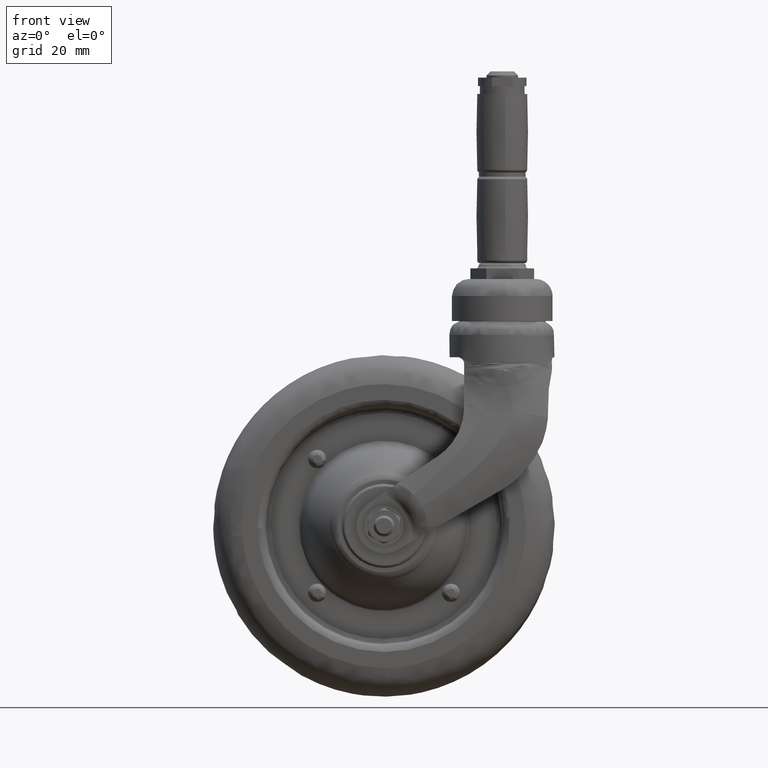
[diagram: clean part render]
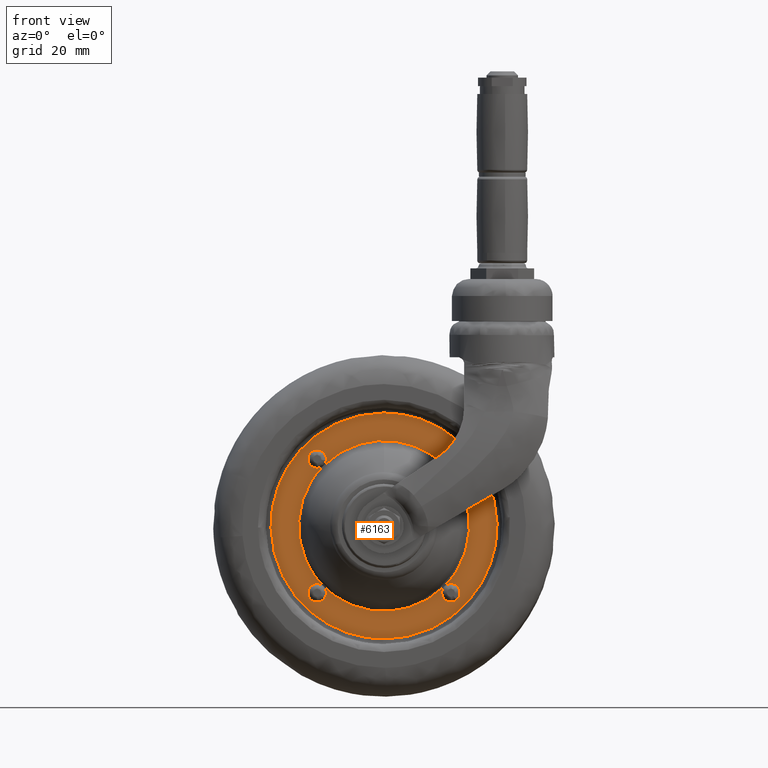
[diagram: same view with one face highlighted and labeled with its STEP entity id]
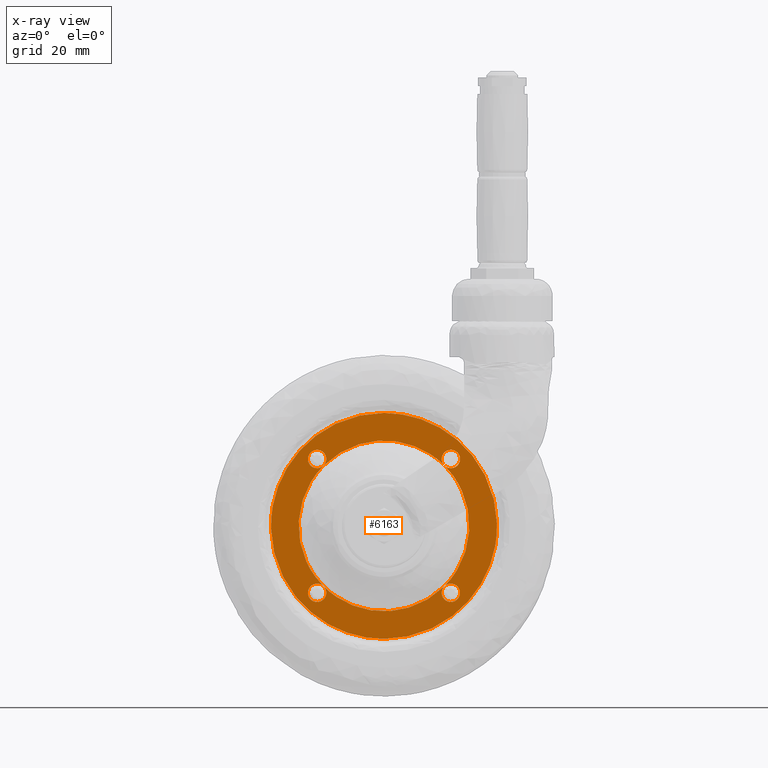
[diagram: x-ray of the same camera — body ghosted, the highlighted face saturated]
A machine part, front view. The second image highlights one B-rep face of the part: STEP entity #6163.
The next image is the same camera in x-ray: the body ghosted, the highlighted face saturated — about 0% of this face is hidden behind the body in this view.
In plain terms, the highlighted face is a freeform B-spline surface patch.
Its self-contained STEP definition (entity closure, byte-faithful):
#2455=CARTESIAN_POINT('',(42.986420140294030,-1.500000000000000,1.080594104099054));
#2456=VERTEX_POINT('',#2455);
#2470=CARTESIAN_POINT('',(0.0,-1.500000000000000,-43.0));
#2471=VERTEX_POINT('',#2470);
#2472=CARTESIAN_POINT('',(0.0,-1.500000000000000,-43.0));
#2473=CARTESIAN_POINT('',(42.999999999999993,-1.500000000000000,-42.999999999999993));
#2474=CARTESIAN_POINT('',(43.0,-1.500000000000000,0.0));
#2475=CARTESIAN_POINT('',(42.999999999999993,-1.500000000000000,0.540382381312797));
#2476=CARTESIAN_POINT('',(42.986420140294030,-1.500000000000000,1.080594104099055));
#2484=(BOUNDED_CURVE()B_SPLINE_CURVE(2,(#2472,#2473,#2474,#2475,#2476),.UNSPECIFIED.,.F.,.U.)B_SPLINE_CURVE_WITH_KNOTS((3,2,3),(0.500000000000000,0.750000000000000,0.754420108230253),.UNSPECIFIED.)CURVE()GEOMETRIC_REPRESENTATION_ITEM()RATIONAL_B_SPLINE_CURVE((1.0,0.707106781186548,1.0,0.994821521091749,0.989826157681439))REPRESENTATION_ITEM(''));
#2485=EDGE_CURVE('',#2471,#2456,#2484,.T.);
#2487=CARTESIAN_POINT('',(-42.986420140294022,-1.500000000000000,-1.080594104099051));
#2488=VERTEX_POINT('',#2487);
#2489=CARTESIAN_POINT('',(-42.986420140294022,-1.500000000000000,-1.080594104099051));
#2490=CARTESIAN_POINT('',(-41.932648675753114,-1.500000000000000,-42.999999999999986));
#2491=CARTESIAN_POINT('',(0.0,-1.500000000000000,-43.0));
#2499=(BOUNDED_CURVE()B_SPLINE_CURVE(2,(#2489,#2490,#2491),.UNSPECIFIED.,.F.,.U.)B_SPLINE_CURVE_WITH_KNOTS((3,3),(0.254420108230254,0.500000000000000),.UNSPECIFIED.)CURVE()GEOMETRIC_REPRESENTATION_ITEM()RATIONAL_B_SPLINE_CURVE((0.989826157681437,0.712285260094800,1.0))REPRESENTATION_ITEM(''));
#2500=EDGE_CURVE('',#2488,#2471,#2499,.T.);
#2547=CARTESIAN_POINT('',(0.0,-1.500000000000000,43.0));
#2548=VERTEX_POINT('',#2547);
#2549=CARTESIAN_POINT('',(0.0,-1.500000000000000,43.0));
#2550=CARTESIAN_POINT('',(-42.999999999999993,-1.500000000000000,42.999999999999993));
#2551=CARTESIAN_POINT('',(-43.0,-1.500000000000000,0.0));
#2552=CARTESIAN_POINT('',(-43.0,-1.500000000000000,-0.540382381312920));
#2553=CARTESIAN_POINT('',(-42.986420140294030,-1.500000000000000,-1.080594104099051));
#2561=(BOUNDED_CURVE()B_SPLINE_CURVE(2,(#2549,#2550,#2551,#2552,#2553),.UNSPECIFIED.,.F.,.U.)B_SPLINE_CURVE_WITH_KNOTS((3,2,3),(0.0,0.250000000000000,0.254420108230254),.UNSPECIFIED.)CURVE()GEOMETRIC_REPRESENTATION_ITEM()RATIONAL_B_SPLINE_CURVE((1.0,0.707106781186548,1.0,0.994821521091748,0.989826157681436))REPRESENTATION_ITEM(''));
#2562=EDGE_CURVE('',#2548,#2488,#2561,.T.);
#2564=CARTESIAN_POINT('',(42.986420140294037,-1.500000000000000,1.080594104099054));
#2565=CARTESIAN_POINT('',(41.932648675753114,-1.500000000000000,42.999999999999986));
#2566=CARTESIAN_POINT('',(0.0,-1.500000000000000,43.0));
#2574=(BOUNDED_CURVE()B_SPLINE_CURVE(2,(#2564,#2565,#2566),.UNSPECIFIED.,.F.,.U.)B_SPLINE_CURVE_WITH_KNOTS((3,3),(0.754420108230254,1.0),.UNSPECIFIED.)CURVE()GEOMETRIC_REPRESENTATION_ITEM()RATIONAL_B_SPLINE_CURVE((0.989826157681437,0.712285260094800,1.0))REPRESENTATION_ITEM(''));
#2575=EDGE_CURVE('',#2456,#2548,#2574,.T.);
#2758=CARTESIAN_POINT('',(-29.581760013895249,-1.500000000000000,-13.468716157134571));
#2759=VERTEX_POINT('',#2758);
#2760=CARTESIAN_POINT('',(-23.090573033363999,-1.500000000000000,22.876019731878401));
#2761=VERTEX_POINT('',#2760);
#2762=CARTESIAN_POINT('',(-29.581760013895245,-1.500000000000000,-13.468716157134565));
#2763=CARTESIAN_POINT('',(-38.875385422188778,-1.499999999999999,6.943162200102726));
#2764=CARTESIAN_POINT('',(-23.090573033363992,-1.500000000000000,22.876019731878390));
#2772=(BOUNDED_CURVE()B_SPLINE_CURVE(2,(#2762,#2763,#2764),.UNSPECIFIED.,.F.,.U.)B_SPLINE_CURVE_WITH_KNOTS((3,3),(0.236393661516890,1.0),.UNSPECIFIED.)CURVE()GEOMETRIC_REPRESENTATION_ITEM()RATIONAL_B_SPLINE_CURVE((0.895447454175677,0.778859244462329,1.0))REPRESENTATION_ITEM(''));
#2773=EDGE_CURVE('',#2759,#2761,#2772,.T.);
#2822=CARTESIAN_POINT('',(29.581760014636380,-1.500000000000000,13.468716157481801));
#2823=VERTEX_POINT('',#2822);
#2837=CARTESIAN_POINT('',(23.090573033364102,-1.500000000000000,22.876019731878301));
#2838=VERTEX_POINT('',#2837);
#2839=CARTESIAN_POINT('',(23.090573033364091,-1.500000000000000,22.876019731878291));
#2840=CARTESIAN_POINT('',(27.176240963495321,-1.499999999999999,18.752032480752465));
#2841=CARTESIAN_POINT('',(29.581760014636373,-1.500000000000001,13.468716157481802));
#2849=(BOUNDED_CURVE()B_SPLINE_CURVE(2,(#2839,#2840,#2841),.UNSPECIFIED.,.F.,.U.)B_SPLINE_CURVE_WITH_KNOTS((3,3),(0.0,0.236393661516541),.UNSPECIFIED.)CURVE()GEOMETRIC_REPRESENTATION_ITEM()RATIONAL_B_SPLINE_CURVE((1.0,0.931540284204646,0.895447454175784))REPRESENTATION_ITEM(''));
#2850=EDGE_CURVE('',#2838,#2823,#2849,.T.);
#2852=CARTESIAN_POINT('',(22.876019731878401,-1.500000000000000,23.090573033363999));
#2853=VERTEX_POINT('',#2852);
#2862=CARTESIAN_POINT('',(-22.876019731878301,-1.500000000000000,23.090573033364102));
#2863=VERTEX_POINT('',#2862);
#2864=CARTESIAN_POINT('',(-22.876019731878301,-1.500000000000000,23.090573033364080));
#2865=CARTESIAN_POINT('',(9.367507E-014,-1.500000000000000,45.754033053050122));
#2866=CARTESIAN_POINT('',(22.876019731878390,-1.500000000000000,23.090573033363992));
#2874=(BOUNDED_CURVE()B_SPLINE_CURVE(2,(#2864,#2865,#2866),.UNSPECIFIED.,.F.,.U.)CURVE()GEOMETRIC_REPRESENTATION_ITEM()QUASI_UNIFORM_CURVE()RATIONAL_B_SPLINE_CURVE((1.0,0.710399528666874,1.0))REPRESENTATION_ITEM(''));
#2875=EDGE_CURVE('',#2863,#2853,#2874,.T.);
#2911=CARTESIAN_POINT('',(-23.090573033364102,-1.500000000000000,-22.876019731878301));
#2912=VERTEX_POINT('',#2911);
#2913=CARTESIAN_POINT('',(-23.090573033364080,-1.500000000000000,-22.876019731878301));
#2914=CARTESIAN_POINT('',(-27.176240963501787,-1.500000000000000,-18.752032480745942));
#2915=CARTESIAN_POINT('',(-29.581760013895249,-1.500000000000001,-13.468716157134574));
#2923=(BOUNDED_CURVE()B_SPLINE_CURVE(2,(#2913,#2914,#2915),.UNSPECIFIED.,.F.,.U.)B_SPLINE_CURVE_WITH_KNOTS((3,3),(0.0,0.236393661516890),.UNSPECIFIED.)CURVE()GEOMETRIC_REPRESENTATION_ITEM()RATIONAL_B_SPLINE_CURVE((1.0,0.931540284204545,0.895447454175677))REPRESENTATION_ITEM(''));
#2924=EDGE_CURVE('',#2912,#2759,#2923,.T.);
#2926=CARTESIAN_POINT('',(-22.876019731878401,-1.500000000000000,-23.090573033363999));
#2927=VERTEX_POINT('',#2926);
#2936=CARTESIAN_POINT('',(22.876019731878301,-1.500000000000000,-23.090573033364102));
#2937=VERTEX_POINT('',#2936);
#2938=CARTESIAN_POINT('',(22.876019731878291,-1.500000000000000,-23.090573033364102));
#2939=CARTESIAN_POINT('',(-9.714451E-014,-1.500000000000000,-45.754033053050101));
#2940=CARTESIAN_POINT('',(-22.876019731878390,-1.500000000000000,-23.090573033363999));
#2948=(BOUNDED_CURVE()B_SPLINE_CURVE(2,(#2938,#2939,#2940),.UNSPECIFIED.,.F.,.U.)CURVE()GEOMETRIC_REPRESENTATION_ITEM()QUASI_UNIFORM_CURVE()RATIONAL_B_SPLINE_CURVE((1.0,0.710399528666875,1.0))REPRESENTATION_ITEM(''));
#2949=EDGE_CURVE('',#2937,#2927,#2948,.T.);
#2951=CARTESIAN_POINT('',(23.090573033363999,-1.500000000000000,-22.876019731878401));
#2952=VERTEX_POINT('',#2951);
#2961=CARTESIAN_POINT('',(29.581760014636373,-1.500000000000001,13.468716157481802));
#2962=CARTESIAN_POINT('',(38.875385422198036,-1.500000000000000,-6.943162200093386));
#2963=CARTESIAN_POINT('',(23.090573033363981,-1.500000000000000,-22.876019731878401));
#2971=(BOUNDED_CURVE()B_SPLINE_CURVE(2,(#2961,#2962,#2963),.UNSPECIFIED.,.F.,.U.)B_SPLINE_CURVE_WITH_KNOTS((3,3),(0.236393661516541,1.0),.UNSPECIFIED.)CURVE()GEOMETRIC_REPRESENTATION_ITEM()RATIONAL_B_SPLINE_CURVE((0.895447454175784,0.778859244462228,1.0))REPRESENTATION_ITEM(''));
#2972=EDGE_CURVE('',#2823,#2952,#2971,.T.);
#3789=CARTESIAN_POINT('',(-25.455844000000180,-1.500000000017301,21.955843999999999));
#3790=VERTEX_POINT('',#3789);
#3791=CARTESIAN_POINT('',(-22.009567270336280,-1.500000000016411,24.844962094408551));
#3792=VERTEX_POINT('',#3791);
#3793=CARTESIAN_POINT('',(-25.455844000000184,-1.500000000017301,21.955843999999995));
#3794=CARTESIAN_POINT('',(-26.950243076269714,-1.500000000000055,21.955844000000234));
#3795=CARTESIAN_POINT('',(-27.983787070009861,-1.500000000000055,23.035202796767141));
#3796=CARTESIAN_POINT('',(-30.352509658176039,-1.500000000000056,25.508925810129693));
#3797=CARTESIAN_POINT('',(-27.930717734152822,-1.500000000000055,27.930717734152910));
#3798=CARTESIAN_POINT('',(-25.508925810129600,-1.500000000000056,30.352509658176132));
#3799=CARTESIAN_POINT('',(-23.035202796767049,-1.500000000000055,27.983787070009960));
#3800=CARTESIAN_POINT('',(-21.682742964262140,-1.500000000000055,26.688734173005482));
#3801=CARTESIAN_POINT('',(-22.009567270336287,-1.500000000016411,24.844962094408555));
#3809=(BOUNDED_CURVE()B_SPLINE_CURVE(2,(#3793,#3794,#3795,#3796,#3797,#3798,#3799,#3800,#3801),.UNSPECIFIED.,.F.,.U.)B_SPLINE_CURVE_WITH_KNOTS((3,2,2,2,3),(0.120016462546934,0.250000000000000,0.500000000000000,0.750000000000000,0.906980907594701),.UNSPECIFIED.)CURVE()GEOMETRIC_REPRESENTATION_ITEM()RATIONAL_B_SPLINE_CURVE((0.857591768916011,0.851678440542794,1.0,0.714730106666852,1.0,0.714730106666852,1.0,0.820872292940476,0.866701626117446))REPRESENTATION_ITEM(''));
#3810=EDGE_CURVE('',#3790,#3792,#3809,.T.);
#3910=CARTESIAN_POINT('',(-22.009567270336287,-1.500000000016412,24.844962094408555));
#3911=CARTESIAN_POINT('',(-22.187414361347695,-1.500000000000055,23.841641672480879));
#3912=CARTESIAN_POINT('',(-22.876019731878280,-1.500000000000055,23.090573033364091));
#3920=(BOUNDED_CURVE()B_SPLINE_CURVE(2,(#3910,#3911,#3912),.UNSPECIFIED.,.F.,.U.)B_SPLINE_CURVE_WITH_KNOTS((3,3),(0.906980907594701,1.0),.UNSPECIFIED.)CURVE()GEOMETRIC_REPRESENTATION_ITEM()RATIONAL_B_SPLINE_CURVE((0.866701626117446,0.893857813726377,1.0))REPRESENTATION_ITEM(''));
#3921=EDGE_CURVE('',#3792,#2863,#3920,.T.);
#3938=CARTESIAN_POINT('',(-23.090573033363992,-1.500000000000055,22.876019731878390));
#3939=CARTESIAN_POINT('',(-24.094217739413601,-1.500000000000056,21.955843999999779));
#3940=CARTESIAN_POINT('',(-25.455844000000184,-1.500000000017301,21.955843999999995));
#3948=(BOUNDED_CURVE()B_SPLINE_CURVE(2,(#3938,#3939,#3940),.UNSPECIFIED.,.F.,.U.)B_SPLINE_CURVE_WITH_KNOTS((3,3),(0.0,0.120016462546934),.UNSPECIFIED.)CURVE()GEOMETRIC_REPRESENTATION_ITEM()RATIONAL_B_SPLINE_CURVE((1.0,0.863051666124057,0.857591768916011))REPRESENTATION_ITEM(''));
#3949=EDGE_CURVE('',#2761,#3790,#3948,.T.);
#4026=CARTESIAN_POINT('',(27.673094835549801,-1.500000000000306,22.747745269847378));
#4027=VERTEX_POINT('',#4026);
#4028=CARTESIAN_POINT('',(22.876019731878401,-1.500000000000000,23.090573033363999));
#4029=CARTESIAN_POINT('',(20.561479783404586,-1.500000000000056,25.615064481843678));
#4030=CARTESIAN_POINT('',(23.035202796767141,-1.500000000000055,27.983787070009861));
#4031=CARTESIAN_POINT('',(25.508925810129682,-1.500000000000056,30.352509658176043));
#4032=CARTESIAN_POINT('',(27.930717734152910,-1.500000000000055,27.930717734152822));
#4033=CARTESIAN_POINT('',(30.352509658176139,-1.500000000000056,25.508925810129615));
#4034=CARTESIAN_POINT('',(27.983787070009960,-1.500000000000055,23.035202796767049));
#4035=CARTESIAN_POINT('',(27.837147849832011,-1.500000000000055,22.882063372408965));
#4036=CARTESIAN_POINT('',(27.673094835549808,-1.500000000000305,22.747745269847378));
#4044=(BOUNDED_CURVE()B_SPLINE_CURVE(2,(#4028,#4029,#4030,#4031,#4032,#4033,#4034,#4035,#4036),.UNSPECIFIED.,.F.,.U.)B_SPLINE_CURVE_WITH_KNOTS((3,2,2,2,3),(0.0,0.250000000000000,0.500000000000000,0.750000000000000,0.771131652094872),.UNSPECIFIED.)CURVE()GEOMETRIC_REPRESENTATION_ITEM()RATIONAL_B_SPLINE_CURVE((1.0,0.714730106666851,1.0,0.714730106666851,1.0,0.714730106666851,1.0,0.975887103443771,0.955850569615749))REPRESENTATION_ITEM(''));
#4045=EDGE_CURVE('',#2853,#4027,#4044,.T.);
#4048=CARTESIAN_POINT('',(25.455841893200670,-1.500002834146449,21.955844000005190));
#4049=VERTEX_POINT('',#4048);
#4050=CARTESIAN_POINT('',(25.455841893200670,-1.500002834146450,21.955844000005190));
#4051=CARTESIAN_POINT('',(24.094216845444965,-1.500001417073225,21.955844819623081));
#4052=CARTESIAN_POINT('',(23.090573033364102,-1.500000000000000,22.876019731878301));
#4060=(BOUNDED_CURVE()B_SPLINE_CURVE(2,(#4050,#4051,#4052),.UNSPECIFIED.,.F.,.U.)B_SPLINE_CURVE_WITH_KNOTS((3,3),(0.879983629714459,1.0),.UNSPECIFIED.)CURVE()GEOMETRIC_REPRESENTATION_ITEM()RATIONAL_B_SPLINE_CURVE((0.857591777310566,0.863051771401649,1.0))REPRESENTATION_ITEM(''));
#4061=EDGE_CURVE('',#4049,#2838,#4060,.T.);
#4175=CARTESIAN_POINT('',(27.673094835549801,-1.500000000000306,22.747745269847382));
#4176=CARTESIAN_POINT('',(26.705884077692236,-1.500001417073378,21.955843247561305));
#4177=CARTESIAN_POINT('',(25.455841893200670,-1.500002834146450,21.955844000005190));
#4185=(BOUNDED_CURVE()B_SPLINE_CURVE(2,(#4175,#4176,#4177),.UNSPECIFIED.,.F.,.U.)B_SPLINE_CURVE_WITH_KNOTS((3,3),(0.771131652094872,0.879983629714459),.UNSPECIFIED.)CURVE()GEOMETRIC_REPRESENTATION_ITEM()RATIONAL_B_SPLINE_CURVE((0.955850569615749,0.852639693247437,0.857591777310566))REPRESENTATION_ITEM(''));
#4186=EDGE_CURVE('',#4027,#4049,#4185,.T.);
#4277=CARTESIAN_POINT('',(27.673094347979241,-1.500000000000040,-28.163943129349789));
#4278=VERTEX_POINT('',#4277);
#4279=CARTESIAN_POINT('',(23.090573033363992,-1.500000000000055,-22.876019731878390));
#4280=CARTESIAN_POINT('',(25.615064481843675,-1.500000000000056,-20.561479783404582));
#4281=CARTESIAN_POINT('',(27.983787070009861,-1.500000000000055,-23.035202796767141));
#4282=CARTESIAN_POINT('',(30.352509658176047,-1.500000000000056,-25.508925810129693));
#4283=CARTESIAN_POINT('',(27.930717734152822,-1.500000000000055,-27.930717734152910));
#4284=CARTESIAN_POINT('',(27.807702135542868,-1.500000000000055,-28.053733332762864));
#4285=CARTESIAN_POINT('',(27.673094347979248,-1.500000000000040,-28.163943129349793));
#4293=(BOUNDED_CURVE()B_SPLINE_CURVE(2,(#4279,#4280,#4281,#4282,#4283,#4284,#4285),.UNSPECIFIED.,.F.,.U.)B_SPLINE_CURVE_WITH_KNOTS((3,2,2,3),(0.0,0.250000000000000,0.500000000000000,0.517414239563161),.UNSPECIFIED.)CURVE()GEOMETRIC_REPRESENTATION_ITEM()RATIONAL_B_SPLINE_CURVE((1.0,0.714730106666852,1.0,0.714730106666852,1.0,0.980128966949357,0.963026245338005))REPRESENTATION_ITEM(''));
#4294=EDGE_CURVE('',#2952,#4278,#4293,.T.);
#4297=CARTESIAN_POINT('',(25.455842650181008,-1.500005440989559,-28.955843999984669));
#4298=VERTEX_POINT('',#4297);
#4299=CARTESIAN_POINT('',(25.455842650181015,-1.500005440989559,-28.955843999984666));
#4300=CARTESIAN_POINT('',(24.050348373186356,-1.500004960469851,-28.955843457939523));
#4301=CARTESIAN_POINT('',(23.035202796767049,-1.500003857841229,-27.983787069999281));
#4302=CARTESIAN_POINT('',(20.561479783404501,-1.500001170938127,-25.615064481840541));
#4303=CARTESIAN_POINT('',(22.876019731878301,-1.500000000000000,-23.090573033364102));
#4311=(BOUNDED_CURVE()B_SPLINE_CURVE(2,(#4299,#4300,#4301,#4302,#4303),.UNSPECIFIED.,.F.,.U.)B_SPLINE_CURVE_WITH_KNOTS((3,2,3),(0.626661108113559,0.750000000000000,1.0),.UNSPECIFIED.)CURVE()GEOMETRIC_REPRESENTATION_ITEM()RATIONAL_B_SPLINE_CURVE((0.857390241799292,0.859260509870905,1.0,0.714730106666852,1.0))REPRESENTATION_ITEM(''));
#4312=EDGE_CURVE('',#4298,#2937,#4311,.T.);
#4426=CARTESIAN_POINT('',(27.673094347979248,-1.500000000000040,-28.163943129349793));
#4427=CARTESIAN_POINT('',(26.705883941161090,-1.500002720494800,-28.955844282475415));
#4428=CARTESIAN_POINT('',(25.455842650181015,-1.500005440989559,-28.955843999984666));
#4436=(BOUNDED_CURVE()B_SPLINE_CURVE(2,(#4426,#4427,#4428),.UNSPECIFIED.,.F.,.U.)B_SPLINE_CURVE_WITH_KNOTS((3,3),(0.517414239563161,0.626661108113559),.UNSPECIFIED.)CURVE()GEOMETRIC_REPRESENTATION_ITEM()RATIONAL_B_SPLINE_CURVE((0.963026245338005,0.855733660269749,0.857390241799292))REPRESENTATION_ITEM(''));
#4437=EDGE_CURVE('',#4278,#4298,#4436,.T.);
#5490=CARTESIAN_POINT('',(-22.607452873527041,-1.500000000004637,-27.489724033490109));
#5491=VERTEX_POINT('',#5490);
#5492=CARTESIAN_POINT('',(-22.876019731878390,-1.500000000000055,-23.090573033363992));
#5493=CARTESIAN_POINT('',(-20.959149567280893,-1.500000000000055,-25.181322143813844));
#5494=CARTESIAN_POINT('',(-22.607452873527038,-1.500000000004637,-27.489724033490102));
#5502=(BOUNDED_CURVE()B_SPLINE_CURVE(2,(#5492,#5493,#5494),.UNSPECIFIED.,.F.,.U.)B_SPLINE_CURVE_WITH_KNOTS((3,3),(0.0,0.217717619702748),.UNSPECIFIED.)CURVE()GEOMETRIC_REPRESENTATION_ITEM()RATIONAL_B_SPLINE_CURVE((1.0,0.751566871402601,0.935839898113460))REPRESENTATION_ITEM(''));
#5503=EDGE_CURVE('',#2927,#5491,#5502,.T.);
#5506=CARTESIAN_POINT('',(-25.455842650181111,-1.500005440989559,-28.955843999984580));
#5507=VERTEX_POINT('',#5506);
#5508=CARTESIAN_POINT('',(-25.455842650181115,-1.500005440989559,-28.955843999984580));
#5509=CARTESIAN_POINT('',(-26.905590909192501,-1.500005879381509,-28.955844559096963));
#5510=CARTESIAN_POINT('',(-27.930717734152921,-1.500005392556095,-27.930717734137890));
#5511=CARTESIAN_POINT('',(-30.352509658176142,-1.500004242464393,-25.508925810117866));
#5512=CARTESIAN_POINT('',(-27.983787070009971,-1.500001603396716,-23.035202796762619));
#5513=CARTESIAN_POINT('',(-25.615064481843781,-1.499998964329040,-20.561479783407361));
#5514=CARTESIAN_POINT('',(-23.090573033364102,-1.500000000000000,-22.876019731878301));
#5522=(BOUNDED_CURVE()B_SPLINE_CURVE(2,(#5508,#5509,#5510,#5511,#5512,#5513,#5514),.UNSPECIFIED.,.F.,.U.)B_SPLINE_CURVE_WITH_KNOTS((3,2,2,3),(0.373338891886441,0.500000000000000,0.750000000000000,1.0),.UNSPECIFIED.)CURVE()GEOMETRIC_REPRESENTATION_ITEM()RATIONAL_B_SPLINE_CURVE((0.857390241799292,0.855469596795947,1.0,0.714730106666851,1.0,0.714730106666851,1.0))REPRESENTATION_ITEM(''));
#5523=EDGE_CURVE('',#5507,#2912,#5522,.T.);
#5623=CARTESIAN_POINT('',(-22.607452873527038,-1.500000000004637,-27.489724033490102));
#5624=CARTESIAN_POINT('',(-22.798164351996238,-1.500000495602412,-27.756810033749112));
#5625=CARTESIAN_POINT('',(-23.035202797005638,-1.500001029983125,-27.983787070341020));
#5626=CARTESIAN_POINT('',(-24.050348373301201,-1.500003318532632,-28.955843458104678));
#5627=CARTESIAN_POINT('',(-25.455842650181115,-1.500005440989559,-28.955843999984580));
#5635=(BOUNDED_CURVE()B_SPLINE_CURVE(2,(#5623,#5624,#5625,#5626,#5627),.UNSPECIFIED.,.F.,.U.)B_SPLINE_CURVE_WITH_KNOTS((3,2,3),(0.217717619702748,0.250000000000000,0.373338891886441),.UNSPECIFIED.)CURVE()GEOMETRIC_REPRESENTATION_ITEM()RATIONAL_B_SPLINE_CURVE((0.935839898113460,0.963163235264251,1.0,0.859260509870905,0.857390241799292))REPRESENTATION_ITEM(''));
#5636=EDGE_CURVE('',#5491,#5507,#5635,.T.);
#6132=CARTESIAN_POINT('',(-47.280763345677343,-1.500000000000000,-47.295699833315318));
#6133=CARTESIAN_POINT('',(-47.280763345677343,-1.500000000000000,47.295702140015067));
#6134=CARTESIAN_POINT('',(47.280765651648629,-1.500000000000000,-47.295699833315318));
#6135=CARTESIAN_POINT('',(47.280765651648629,-1.500000000000000,47.295702140015067));
#6136=B_SPLINE_SURFACE_WITH_KNOTS('',1,1,((#6132,#6134),(#6133,#6135)),.UNSPECIFIED.,.F.,.F.,.U.,(2,2),(2,2),(0.0,94.591401973330392),(0.0,94.561528997325979),.UNSPECIFIED.);
#6137=ORIENTED_EDGE('',*,*,#2562,.T.);
#6138=ORIENTED_EDGE('',*,*,#2500,.T.);
#6139=ORIENTED_EDGE('',*,*,#2485,.T.);
#6140=ORIENTED_EDGE('',*,*,#2575,.T.);
#6141=EDGE_LOOP('',(#6137,#6138,#6139,#6140));
#6142=FACE_OUTER_BOUND('',#6141,.T.);
#6143=ORIENTED_EDGE('',*,*,#2875,.T.);
#6144=ORIENTED_EDGE('',*,*,#4045,.T.);
#6145=ORIENTED_EDGE('',*,*,#4186,.T.);
#6146=ORIENTED_EDGE('',*,*,#4061,.T.);
#6147=ORIENTED_EDGE('',*,*,#2850,.T.);
#6148=ORIENTED_EDGE('',*,*,#2972,.T.);
#6149=ORIENTED_EDGE('',*,*,#4294,.T.);
#6150=ORIENTED_EDGE('',*,*,#4437,.T.);
#6151=ORIENTED_EDGE('',*,*,#4312,.T.);
#6152=ORIENTED_EDGE('',*,*,#2949,.T.);
#6153=ORIENTED_EDGE('',*,*,#5503,.T.);
#6154=ORIENTED_EDGE('',*,*,#5636,.T.);
#6155=ORIENTED_EDGE('',*,*,#5523,.T.);
#6156=ORIENTED_EDGE('',*,*,#2924,.T.);
#6157=ORIENTED_EDGE('',*,*,#2773,.T.);
#6158=ORIENTED_EDGE('',*,*,#3949,.T.);
#6159=ORIENTED_EDGE('',*,*,#3810,.T.);
#6160=ORIENTED_EDGE('',*,*,#3921,.T.);
#6161=EDGE_LOOP('',(#6143,#6144,#6145,#6146,#6147,#6148,#6149,#6150,#6151,#6152,#6153,#6154,#6155,#6156,#6157,#6158,#6159,#6160));
#6162=FACE_BOUND('',#6161,.T.);
#6163=ADVANCED_FACE('',(#6142,#6162),#6136,.F.);